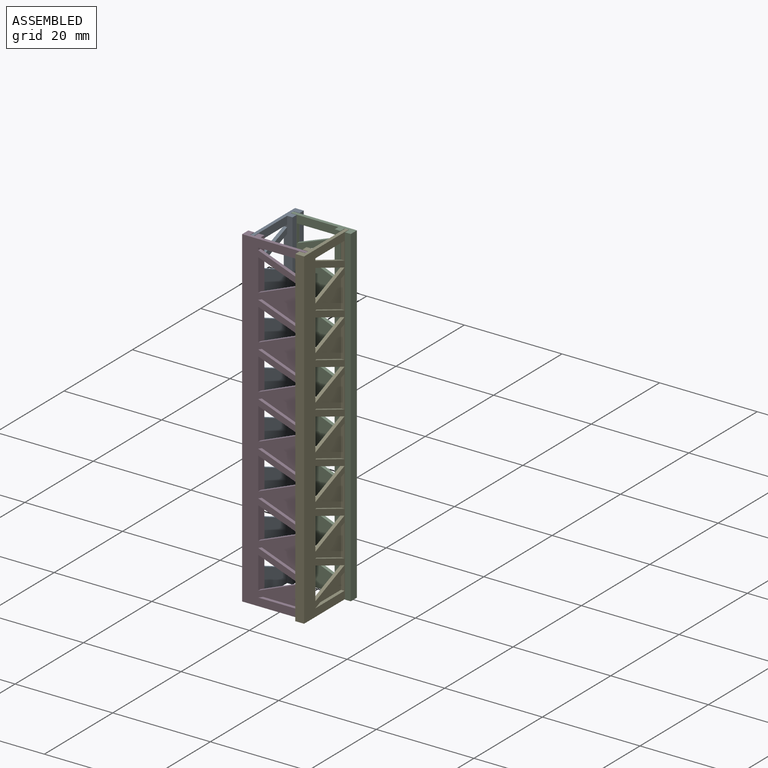
[diagram: assembled view]
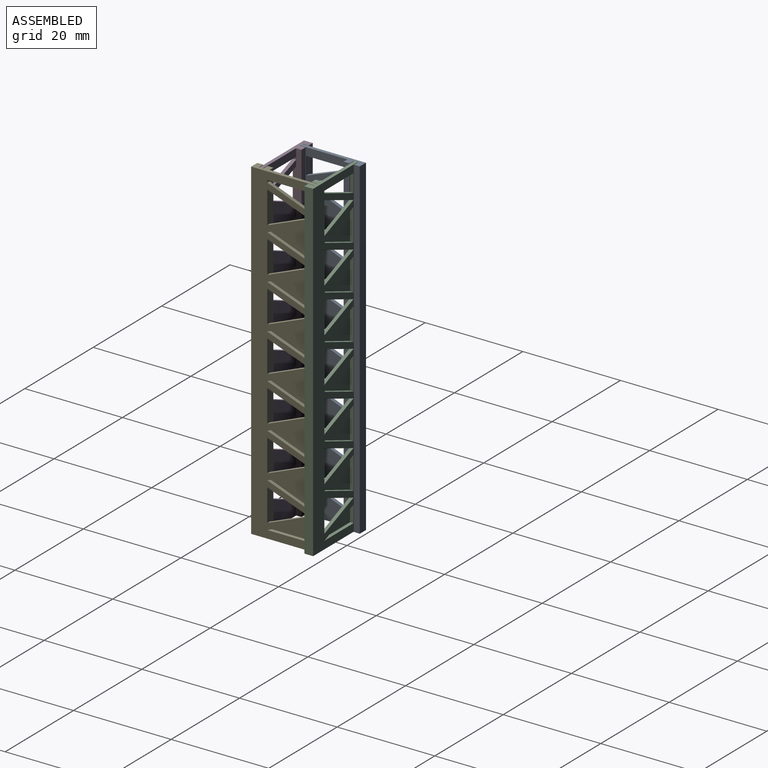
[diagram: assembled view, second angle]
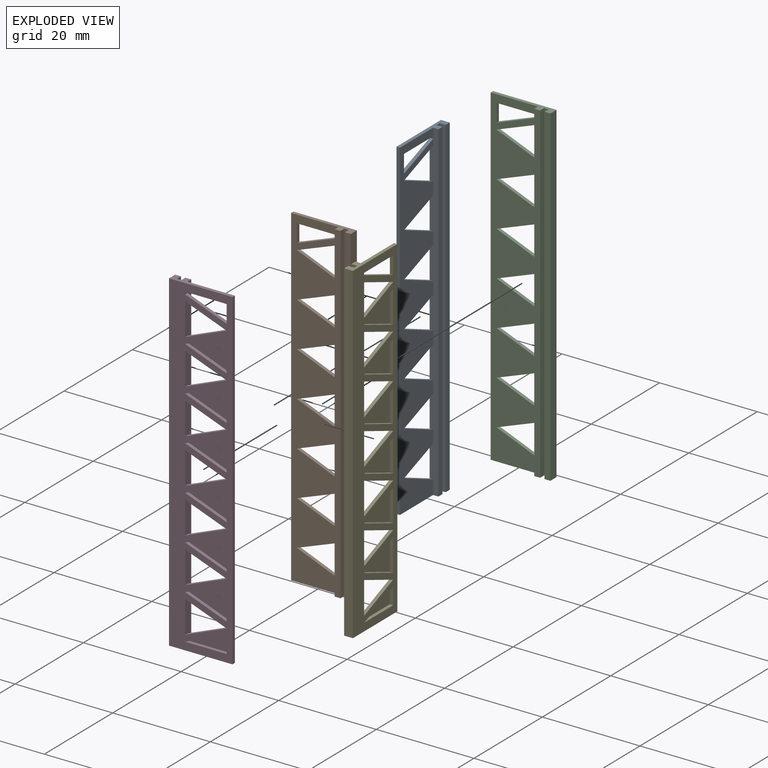
[diagram: exploded view]
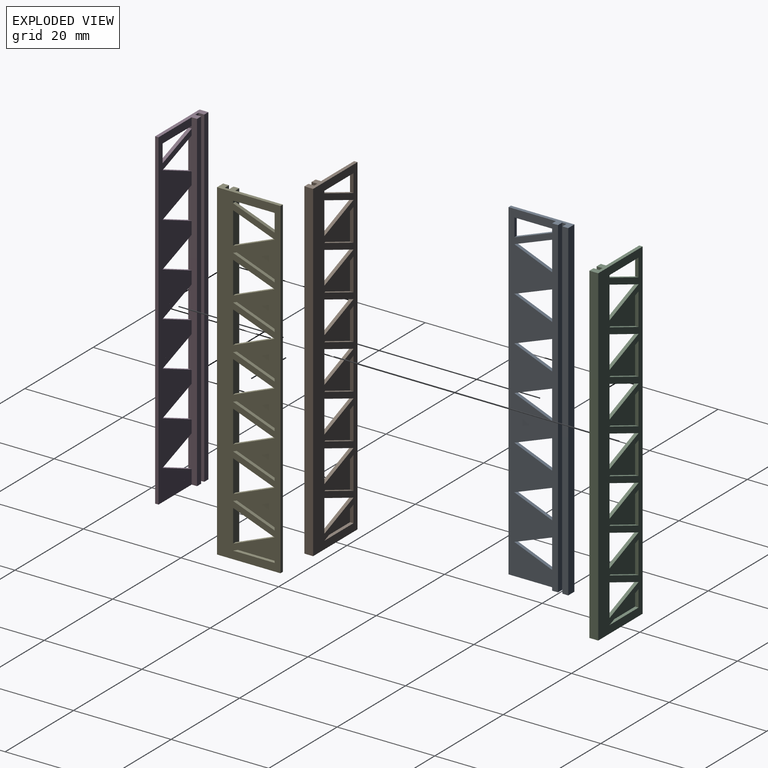
[diagram: exploded view, second angle]
ASSEMBLY  parts=5 mates=3
PART A: 50 faces, bbox 13x1.8x68 mm
  f0: plane 68x13mm, normal (0,1,0), area 486.4mm2, adj f2,f3,f4,f10,f11,f12,f13,f14
  f1: plane 68x9.7mm, normal (0,-1,0), area 262mm2, adj f3,f4,f10,f11,f12,f13,f14,f15
  f2: plane 68x1.8mm, normal (1,0,0), area 122.4mm2, adj f0,f9,f10,f11
  f3: plane 68x0.7mm, normal (-1,0,0), area 47.6mm2, adj f0,f1,f10,f11
  f4: plane 68x1.8mm, normal (-1,0,0), area 107.5mm2, adj f0,f1,f5,f10,f11,f15,f16,f36
  f5: plane 68x1.2mm, normal (0,-1,0), area 81.6mm2, adj f4,f6,f10,f11
  f6: plane 68x1.2mm, normal (1,0,0), area 81.6mm2, adj f5,f7,f10,f11
  f7: plane 68x0.9mm, normal (0,-1,0), area 61.2mm2, adj f6,f8,f10,f11
  f8: plane 68x1.2mm, normal (-1,0,0), area 81.6mm2, adj f7,f9,f10,f11
  f9: plane 68x1.2mm, normal (0,-1,0), area 81.6mm2, adj f2,f8,f10,f11
  f10: plane 13x1.8mm, normal (0,0,1), area 11.7mm2, adj f0,f1,f2,f3,f4,f5,f6,f7
  f11: plane 13x1.8mm, normal (0,0,-1), area 11.7mm2, adj f0,f1,f2,f3,f4,f5,f6,f7
  f12: plane 8.5x0.7mm, normal (0,0,1), area 6mm2, adj f0,f1,f13,f14
  f13: plane 8.5x3.43mm, normal (-0.37,0,-0.93), area 6.4mm2, adj f0,f1,f12,f14
  f14: plane 3.43x0.7mm, normal (1,0,0), area 2.4mm2, adj f0,f1,f12,f13
  f15: plane 8.5x3.18mm, normal (-0.35,0,0.94), area 6.4mm2, adj f0,f1,f4,f17
  f16: plane 8.5x0.7mm, normal (0,0,-1), area 6mm2, adj f0,f1,f4,f17
  f17: plane 3.66x0.7mm, normal (1,0,0), area 2.6mm2, adj f0,f1,f15,f16
  f18: plane 8.5x3.18mm, normal (-0.35,0,0.94), area 6.4mm2, adj f0,f1,f19,f20
  f19: plane 8.5x3.43mm, normal (-0.37,0,-0.93), area 6.4mm2, adj f0,f1,f18,f20
  f20: plane 6.61x0.7mm, normal (1,0,0), area 4.6mm2, adj f0,f1,f18,f19
  f21: plane 8.5x3.18mm, normal (-0.35,0,0.94), area 6.4mm2, adj f0,f1,f22,f23
  f22: plane 8.5x3.43mm, normal (-0.37,0,-0.93), area 6.4mm2, adj f0,f1,f21,f23
  f23: plane 6.61x0.7mm, normal (1,0,0), area 4.6mm2, adj f0,f1,f21,f22
  f24: plane 8.5x3.18mm, normal (-0.35,0,0.94), area 6.4mm2, adj f0,f1,f25,f26
  f25: plane 8.5x3.43mm, normal (-0.37,0,-0.93), area 6.4mm2, adj f0,f1,f24,f26
  f26: plane 6.61x0.7mm, normal (1,0,0), area 4.6mm2, adj f0,f1,f24,f25
  f27: plane 8.5x3.18mm, normal (-0.35,0,0.94), area 6.4mm2, adj f0,f1,f28,f29
  f28: plane 8.5x3.43mm, normal (-0.37,0,-0.93), area 6.4mm2, adj f0,f1,f27,f29
  f29: plane 6.61x0.7mm, normal (1,0,0), area 4.6mm2, adj f0,f1,f27,f28
  f30: plane 8.5x3.18mm, normal (-0.35,0,0.94), area 6.4mm2, adj f0,f1,f31,f32
  f31: plane 8.5x3.43mm, normal (-0.37,0,-0.93), area 6.4mm2, adj f0,f1,f30,f32
  f32: plane 6.61x0.7mm, normal (1,0,0), area 4.6mm2, adj f0,f1,f30,f31
  f33: plane 8.5x3.18mm, normal (-0.35,0,0.94), area 6.4mm2, adj f0,f1,f34,f35
  f34: plane 8.5x3.43mm, normal (-0.37,0,-0.93), area 6.4mm2, adj f0,f1,f33,f35
  f35: plane 6.61x0.7mm, normal (1,0,0), area 4.6mm2, adj f0,f1,f33,f34
  f36: plane 8.5x3.18mm, normal (0.35,0,-0.94), area 6.4mm2, adj f0,f1,f4,f37
  f37: plane 8.5x3.43mm, normal (0.37,0,0.93), area 6.4mm2, adj f0,f1,f4,f36
  f38: plane 8.5x3.18mm, normal (0.35,0,-0.94), area 6.4mm2, adj f0,f1,f4,f39
  f39: plane 8.5x3.43mm, normal (0.37,0,0.93), area 6.4mm2, adj f0,f1,f4,f38
  f40: plane 8.5x3.18mm, normal (0.35,0,-0.94), area 6.4mm2, adj f0,f1,f4,f41
  f41: plane 8.5x3.43mm, normal (0.37,0,0.93), area 6.4mm2, adj f0,f1,f4,f40
  f42: plane 8.5x3.18mm, normal (0.35,0,-0.94), area 6.4mm2, adj f0,f1,f4,f43
  f43: plane 8.5x3.43mm, normal (0.37,0,0.93), area 6.4mm2, adj f0,f1,f4,f42
  f44: plane 8.5x3.18mm, normal (0.35,0,-0.94), area 6.4mm2, adj f0,f1,f4,f45
  f45: plane 8.5x3.43mm, normal (0.37,0,0.93), area 6.4mm2, adj f0,f1,f4,f44
  f46: plane 8.5x3.18mm, normal (0.35,0,-0.94), area 6.4mm2, adj f0,f1,f4,f47
  f47: plane 8.5x3.43mm, normal (0.37,0,0.93), area 6.4mm2, adj f0,f1,f4,f46
  f48: plane 8.5x3.18mm, normal (0.35,0,-0.94), area 6.4mm2, adj f0,f1,f4,f49
  f49: plane 8.5x3.43mm, normal (0.37,0,0.93), area 6.4mm2, adj f0,f1,f4,f48
PART B: same geometry as A
PART C: same geometry as A
PART D: same geometry as A
PART E: same geometry as A
PLACE A rot(axis=(0,0,1),90deg) t=(1.54,13.92,-8.52)mm
PLACE B t=(2.14,12.62,-8.52)mm
PLACE C t=(2.14,12.62,-8.52)mm
PLACE D rot(axis=(0,0,1),180deg) t=(0.24,13.32,-8.52)mm
PLACE E rot(axis=(0,0,-1),90deg) t=(0.84,12.02,-8.52)mm
MATE fastened D.f3 <-> E.f7  axis (1,0,0) through (6.74,7.17,25.48)mm
MATE fastened A.f3 <-> D.f7  axis (0,-1,0) through (-4.61,7.42,25.48)mm
MATE fastened E.f3 <-> C.f7  axis (0,1,0) through (6.99,18.52,25.48)mm
